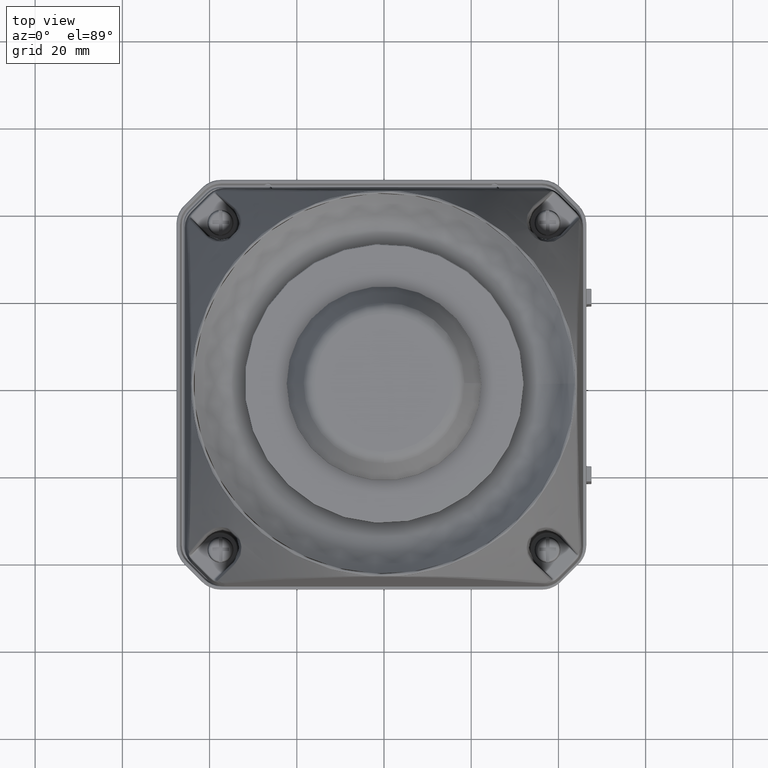
[diagram: clean part render]
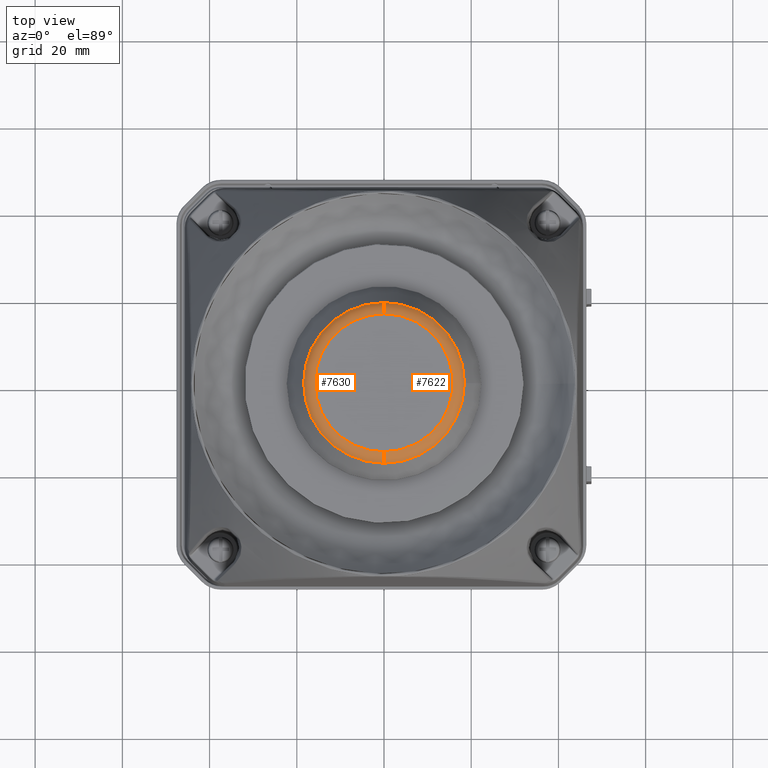
[diagram: same view with one multi-face feature highlighted, each face labeled with its STEP entity id]
A machine part, top view. The highlighted faces form ONE feature: a constant-radius fillet chain: 2 tangent blend faces with common blend radius 3 mm. The faces share edges in the B-rep.
Their STEP definitions:
[1] entity #7622 (Torus):
#7622=ADVANCED_FACE('',(#9879),#9687,.T.);
#9687=TOROIDAL_SURFACE('',#31848,15.8336769850762,3.);
#9879=FACE_OUTER_BOUND('',#11642,.T.);
#11642=EDGE_LOOP('',(#14029,#14030,#14031,#14032,#14033));
#14029=ORIENTED_EDGE('',*,*,#25673,.F.);
#14030=ORIENTED_EDGE('',*,*,#25674,.T.);
#14031=ORIENTED_EDGE('',*,*,#25675,.T.);
#14032=ORIENTED_EDGE('',*,*,#25676,.F.);
#14033=ORIENTED_EDGE('',*,*,#25677,.F.);
#22951=VERTEX_POINT('',#44179);
#22952=VERTEX_POINT('',#44180);
#22953=VERTEX_POINT('',#44182);
#22954=VERTEX_POINT('',#44184);
#22955=VERTEX_POINT('',#44186);
#25673=EDGE_CURVE('',#22951,#22952,#30134,.T.);
#25674=EDGE_CURVE('',#22951,#22953,#30135,.T.);
#25675=EDGE_CURVE('',#22953,#22954,#30136,.T.);
#25676=EDGE_CURVE('',#22955,#22954,#30137,.T.);
#25677=EDGE_CURVE('',#22952,#22955,#30138,.T.);
#30134=CIRCLE('',#31843,3.);
#30135=CIRCLE('',#31844,18.4317531964295);
#30136=CIRCLE('',#31845,18.4317531964295);
#30137=CIRCLE('',#31846,3.);
#30138=CIRCLE('',#31847,15.8336769850762);
#31843=AXIS2_PLACEMENT_3D('',#44178,#35391,#35392);
#31844=AXIS2_PLACEMENT_3D('',#44181,#35393,#35394);
#31845=AXIS2_PLACEMENT_3D('',#44183,#35395,#35396);
#31846=AXIS2_PLACEMENT_3D('',#44185,#35397,#35398);
#31847=AXIS2_PLACEMENT_3D('',#44187,#35399,#35400);
#31848=AXIS2_PLACEMENT_3D('',#44188,#35401,#35402);
#35391=DIRECTION('',(-1.,0.,0.));
#35392=DIRECTION('',(0.,-1.,0.));
#35393=DIRECTION('',(0.,0.,1.));
#35394=DIRECTION('',(-1.,0.,0.));
#35395=DIRECTION('',(0.,0.,1.));
#35396=DIRECTION('',(-1.,0.,0.));
#35397=DIRECTION('',(-1.,0.,0.));
#35398=DIRECTION('',(0.,1.,0.));
#35399=DIRECTION('',(0.,0.,1.));
#35400=DIRECTION('',(-1.,0.,0.));
#35401=DIRECTION('',(-1.224606E-016,0.,1.));
#35402=DIRECTION('',(0.,1.,0.));
#44178=CARTESIAN_POINT('',(-9.79170087025971E-015,-15.8336769850762,-22.2999036403726));
#44179=CARTESIAN_POINT('',(-1.07878116162308E-014,-18.4317531964295,-20.7999036403726));
#44180=CARTESIAN_POINT('',(-9.79170087025971E-015,-15.8336769850762,-19.2999036403726));
#44181=CARTESIAN_POINT('',(-7.79270311473956E-015,1.04083408558608E-014,
-20.7999036403726));
#44182=CARTESIAN_POINT('',(18.4317531964295,8.15117685586084E-015,-20.7999036403726));
#44183=CARTESIAN_POINT('',(-7.79270311473956E-015,1.04083408558608E-014,
-20.7999036403726));
#44184=CARTESIAN_POINT('',(-5.79370535921941E-015,18.4317531964295,-20.7999036403726));
#44185=CARTESIAN_POINT('',(-5.79370535921941E-015,15.8336769850762,-22.2999036403726));
#44186=CARTESIAN_POINT('',(-6.78981610519047E-015,15.8336769850762,-19.2999036403726));
#44187=CARTESIAN_POINT('',(-7.79270311473956E-015,1.04083408558608E-014,
-19.2999036403726));
#44188=CARTESIAN_POINT('',(-7.79270311473956E-015,1.04083408558608E-014,
-22.2999036403726));
[2] entity #7630 (Torus):
#7630=ADVANCED_FACE('',(#9886),#9688,.T.);
#9688=TOROIDAL_SURFACE('',#31870,15.8336769850762,3.);
#9886=FACE_OUTER_BOUND('',#11651,.T.);
#11651=EDGE_LOOP('',(#14064,#14065,#14066,#14067,#14068,#14069));
#14064=ORIENTED_EDGE('',*,*,#25673,.T.);
#14065=ORIENTED_EDGE('',*,*,#25696,.F.);
#14066=ORIENTED_EDGE('',*,*,#25697,.F.);
#14067=ORIENTED_EDGE('',*,*,#25676,.T.);
#14068=ORIENTED_EDGE('',*,*,#25695,.T.);
#14069=ORIENTED_EDGE('',*,*,#25681,.T.);
#22951=VERTEX_POINT('',#44179);
#22952=VERTEX_POINT('',#44180);
#22954=VERTEX_POINT('',#44184);
#22955=VERTEX_POINT('',#44186);
#22957=VERTEX_POINT('',#44191);
#22967=VERTEX_POINT('',#44226);
#25673=EDGE_CURVE('',#22951,#22952,#30134,.T.);
#25676=EDGE_CURVE('',#22955,#22954,#30137,.T.);
#25681=EDGE_CURVE('',#22957,#22951,#30140,.T.);
#25695=EDGE_CURVE('',#22954,#22957,#30150,.T.);
#25696=EDGE_CURVE('',#22967,#22952,#30151,.T.);
#25697=EDGE_CURVE('',#22955,#22967,#30152,.T.);
#30134=CIRCLE('',#31843,3.);
#30137=CIRCLE('',#31846,3.);
#30140=CIRCLE('',#31850,18.4317531964295);
#30150=CIRCLE('',#31866,18.4317531964295);
#30151=CIRCLE('',#31868,15.8336769850762);
#30152=CIRCLE('',#31869,15.8336769850762);
#31843=AXIS2_PLACEMENT_3D('',#44178,#35391,#35392);
#31846=AXIS2_PLACEMENT_3D('',#44185,#35397,#35398);
#31850=AXIS2_PLACEMENT_3D('',#44195,#35407,#35408);
#31866=AXIS2_PLACEMENT_3D('',#44223,#35443,#35444);
#31868=AXIS2_PLACEMENT_3D('',#44225,#35447,#35448);
#31869=AXIS2_PLACEMENT_3D('',#44227,#35449,#35450);
#31870=AXIS2_PLACEMENT_3D('',#44228,#35451,#35452);
#35391=DIRECTION('',(-1.,0.,0.));
#35392=DIRECTION('',(0.,-1.,0.));
#35397=DIRECTION('',(-1.,0.,0.));
#35398=DIRECTION('',(0.,1.,0.));
#35407=DIRECTION('',(0.,0.,1.));
#35408=DIRECTION('',(-1.,0.,0.));
#35443=DIRECTION('',(0.,0.,1.));
#35444=DIRECTION('',(-1.,0.,0.));
#35447=DIRECTION('',(0.,0.,1.));
#35448=DIRECTION('',(-1.,0.,0.));
#35449=DIRECTION('',(0.,0.,1.));
#35450=DIRECTION('',(-1.,0.,0.));
#35451=DIRECTION('',(-1.224606E-016,0.,1.));
#35452=DIRECTION('',(0.,1.,0.));
#44178=CARTESIAN_POINT('',(-9.79170087025971E-015,-15.8336769850762,-22.2999036403726));
#44179=CARTESIAN_POINT('',(-1.07878116162308E-014,-18.4317531964295,-20.7999036403726));
#44180=CARTESIAN_POINT('',(-9.79170087025971E-015,-15.8336769850762,-19.2999036403726));
#44184=CARTESIAN_POINT('',(-5.79370535921941E-015,18.4317531964295,-20.7999036403726));
#44185=CARTESIAN_POINT('',(-5.79370535921941E-015,15.8336769850762,-22.2999036403726));
#44186=CARTESIAN_POINT('',(-6.78981610519047E-015,15.8336769850762,-19.2999036403726));
#44191=CARTESIAN_POINT('',(-18.4317531964295,1.04083408558608E-014,-20.7999036403726));
#44195=CARTESIAN_POINT('',(-7.79270311473956E-015,1.04083408558608E-014,
-20.7999036403726));
#44223=CARTESIAN_POINT('',(-7.79270311473956E-015,1.04083408558608E-014,
-20.7999036403726));
#44225=CARTESIAN_POINT('',(-7.79270311473956E-015,1.04083408558608E-014,
-19.2999036403726));
#44226=CARTESIAN_POINT('',(-15.8336769850762,1.04083408558608E-014,-19.2999036403726));
#44227=CARTESIAN_POINT('',(-7.79270311473956E-015,1.04083408558608E-014,
-19.2999036403726));
#44228=CARTESIAN_POINT('',(-7.79270311473956E-015,1.04083408558608E-014,
-22.2999036403726));